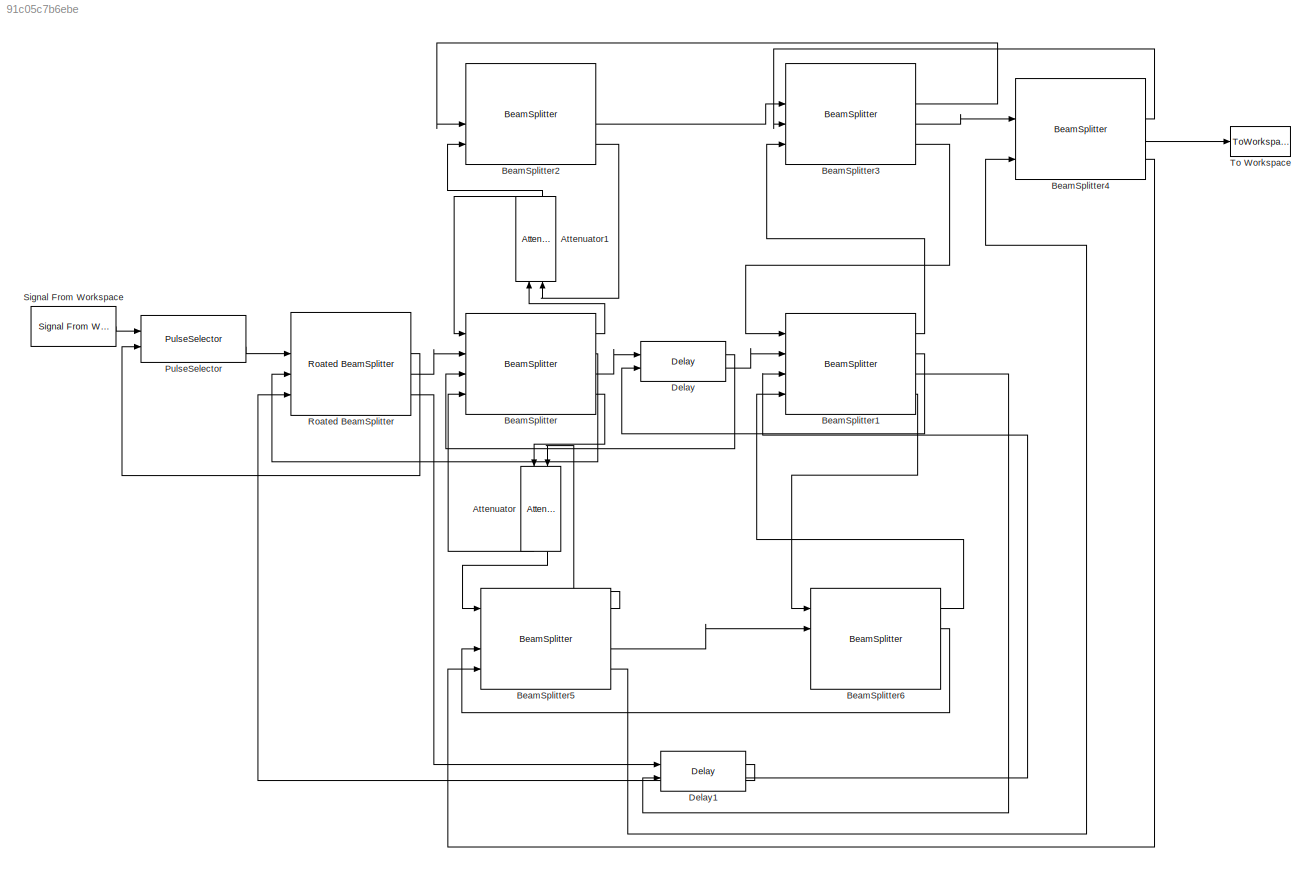
MODEL slx_91c05c7b6ebe
KIND model
CONFIG InitFcn = initialize;
CONFIG StopFcn = OutputPlotting;
BLOCK [Reference] Attenuator  REF=BlockLib/Attenuator
  AttnFactor = 0.5
  Ports = [2, 2]
  SourceBlock = BlockLib/Attenuator
BLOCK [Reference] Attenuator1  REF=BlockLib/Attenuator
  AttnFactor = 0.5
  Ports = [2, 2]
  SourceBlock = BlockLib/Attenuator
BLOCK [Reference] BeamSplitter  REF=BlockLib/BeamSplitter
  BackReflectance = 0.001
  Ghost = 0.01
  Ports = [4, 4]
  Reflectance = 0.50
  SourceBlock = BlockLib/BeamSplitter
  Transmittance = 0.50
BLOCK [Reference] BeamSplitter1  REF=BlockLib/BeamSplitter
  BackReflectance = 0.001
  Ghost = 0.01
  Ports = [4, 4]
  Reflectance = 0.50
  SourceBlock = BlockLib/BeamSplitter
  Transmittance = 0.50
BLOCK [Reference] BeamSplitter2  REF=BlockLib/BeamSplitter
  BackReflectance = 0.001
  Ghost = 0.01
  Ports = [4, 4]
  Reflectance = 0.50
  SourceBlock = BlockLib/BeamSplitter
  Transmittance = 0.50
BLOCK [Reference] BeamSplitter3  REF=BlockLib/BeamSplitter
  BackReflectance = 0.001
  Ghost = 0.01
  Ports = [4, 4]
  Reflectance = 0.50
  SourceBlock = BlockLib/BeamSplitter
  Transmittance = 0.50
BLOCK [Reference] BeamSplitter4  REF=BlockLib/BeamSplitter
  BackReflectance = 0.001
  Ghost = 0.01
  Ports = [4, 4]
  Reflectance = 0.50
  SourceBlock = BlockLib/BeamSplitter
  Transmittance = 0.50
BLOCK [Reference] BeamSplitter5  REF=BlockLib/BeamSplitter
  BackReflectance = 0.001
  Ghost = 0.01
  Ports = [4, 4]
  Reflectance = 0.50
  SourceBlock = BlockLib/BeamSplitter
  Transmittance = 0.50
BLOCK [Reference] BeamSplitter6  REF=BlockLib/BeamSplitter
  BackReflectance = 0.001
  Ghost = 0.01
  Ports = [4, 4]
  Reflectance = 0.50
  SourceBlock = BlockLib/BeamSplitter
  Transmittance = 0.50
BLOCK [Reference] Delay  REF=BlockLib/Delay
  DelayAmt = 0.2e-7
  Ports = [2, 2]
  SourceBlock = BlockLib/Delay
BLOCK [Reference] Delay1  REF=BlockLib/Delay
  DelayAmt = 0.6e-7
  Ports = [2, 2]
  SourceBlock = BlockLib/Delay
BLOCK [Reference] PulseSelector  REF=BlockLib/PulseSelector
  ControlPowers = [1.0]
  PCTimings = [-1,1]*1e-9
  Ports = [2, 2]
  SourceBlock = BlockLib/PulseSelector
BLOCK [Reference] Roated BeamSplitter  REF=BlockLib/Roated BeamSplitter
  BackReflectance = 0.001
  Ghost = 0.01
  Ports = [4, 4]
  Reflectance = 0.50
  SourceBlock = BlockLib/Roated BeamSplitter
  Transmittance = 0.50
BLOCK [Reference] Signal From Workspace  REF=dspsrcs4/Signal From
Workspace
  OutputAfterFinalValue = Setting to zero
  Ports = [0, 1]
  SourceBlock = dspsrcs4/Signal From\nWorkspace
  SourceType = Signal From Workspace
  Ts = 1
  X = inputsignal
  ignoreOrWarnInputAndFrameLengths = off
  nsamps = 1
BLOCK [ToWorkspace] To Workspace
  FixptAsFi = on
  MaxDataPoints = inf
  Ports = [1]
  SampleTime = -1
  Save2DSignal = 3-D array (concatenate along third dimension)
  SaveFormat = Timeseries
  VariableName = simout
LINE Attenuator1:1 -> BeamSplitter:1
LINE Attenuator1:2 -> BeamSplitter2:4
LINE Attenuator:1 -> BeamSplitter:4
LINE Attenuator:2 -> BeamSplitter5:1
LINE BeamSplitter1:1 -> BeamSplitter3:4
LINE BeamSplitter1:2 -> Delay:2
LINE BeamSplitter1:3 -> Delay1:2
LINE BeamSplitter1:4 -> BeamSplitter6:1
LINE BeamSplitter2:3 -> BeamSplitter3:2
LINE BeamSplitter2:4 -> Attenuator1:2
LINE BeamSplitter3:2 -> BeamSplitter2:3
LINE BeamSplitter3:3 -> BeamSplitter4:2
LINE BeamSplitter3:4 -> BeamSplitter1:1
LINE BeamSplitter4:2 -> BeamSplitter3:3
LINE BeamSplitter4:3 -> To Workspace:1
LINE BeamSplitter4:4 -> BeamSplitter5:4
LINE BeamSplitter5:1 -> Attenuator:2
LINE BeamSplitter5:3 -> BeamSplitter6:2
LINE BeamSplitter5:4 -> BeamSplitter4:4
LINE BeamSplitter6:1 -> BeamSplitter1:4
LINE BeamSplitter6:2 -> BeamSplitter5:3
LINE BeamSplitter:1 -> Attenuator1:1
LINE BeamSplitter:2 -> Roated BeamSplitter:3
LINE BeamSplitter:3 -> Delay:1
LINE BeamSplitter:4 -> Attenuator:1
LINE Delay1:1 -> Roated BeamSplitter:4
LINE Delay1:2 -> BeamSplitter1:3
LINE Delay:1 -> BeamSplitter:3
LINE Delay:2 -> BeamSplitter1:2
LINE PulseSelector:2 -> Roated BeamSplitter:2
LINE Roated BeamSplitter:2 -> PulseSelector:2
LINE Roated BeamSplitter:3 -> BeamSplitter:2
LINE Roated BeamSplitter:4 -> Delay1:1
LINE Signal From Workspace:1 -> PulseSelector:1
